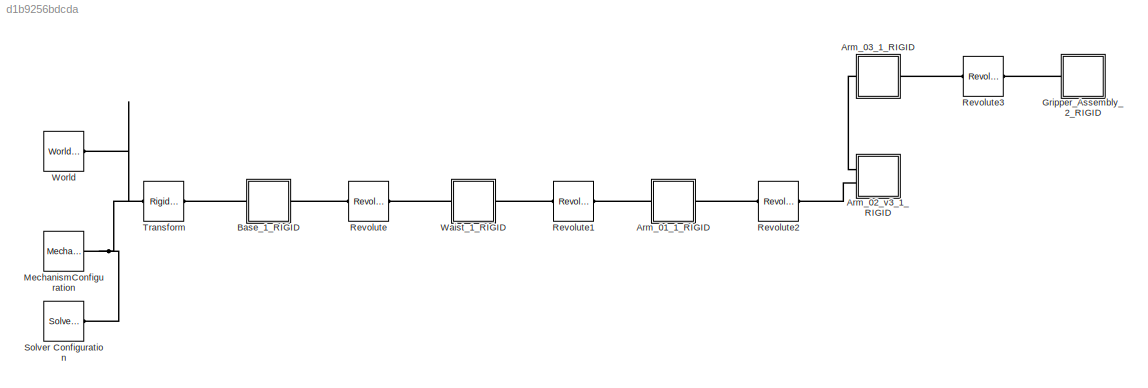
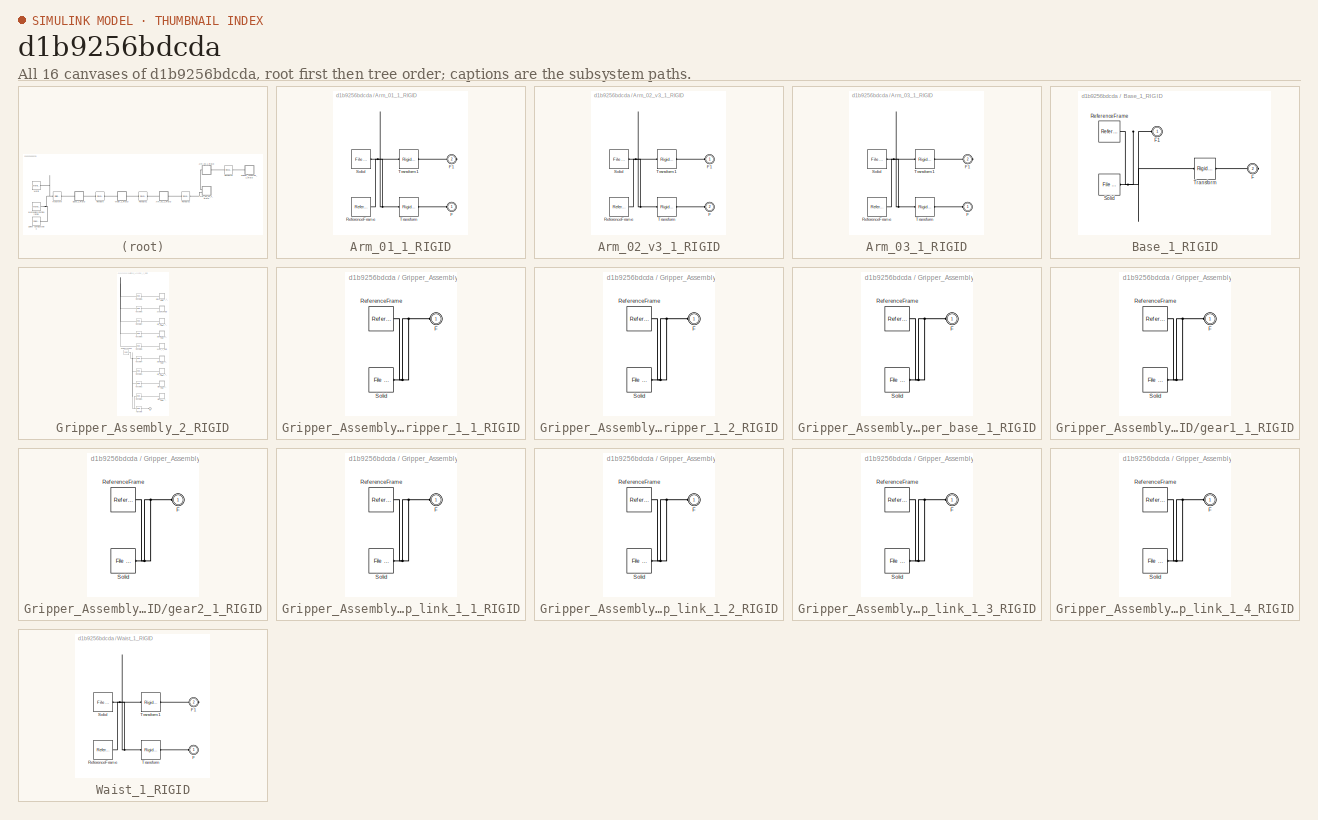
[diagram: thumbnail index - all 16 canvases of the model, root first then tree order]
MODEL slx_d1b9256bdcda
KIND model
CONFIG AbsTol = auto
CONFIG EnableMultiTasking = off
CONFIG FixedStep = auto
CONFIG MaxStep = auto
CONFIG MinStep = auto
CONFIG RelTol = 1e-3
CONFIG SampleTimeConstraint = Unconstrained
CONFIG SolverName = VariableStepAuto
CONFIG StartTime = 0.0
CONFIG StopTime = 10.0
WORKSPACE source: external: MATLAB File  (data not in archive)
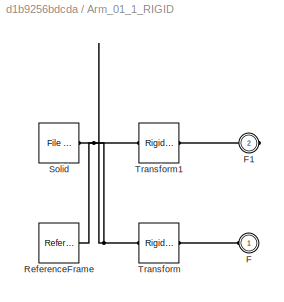
BLOCK [SubSystem] Arm_01_1_RIGID
  Ports = [0, 0, 0, 0, 0, 1, 1]
  RequestExecContextInheritance = off
BLOCK [PMIOPort] Arm_01_1_RIGID/F
  Side = Left
BLOCK [PMIOPort] Arm_01_1_RIGID/F1
  Port = 2
  Side = Right
BLOCK [Reference] Arm_01_1_RIGID/ReferenceFrame  REF=sm_lib/Frames and
Transforms/Reference
Frame
  Ports = [0, 0, 0, 0, 0, 0, 1]
  SourceBlock = sm_lib/Frames and\nTransforms/Reference\nFrame
  SourceProductBaseCode = MS
  SourceType = Reference\nFrame
BLOCK [Reference] Arm_01_1_RIGID/Solid  REF=sm_lib/Body Elements/File Solid
  Ports = [0, 0, 0, 0, 0, 0, 1]
  SourceBlock = sm_lib/Body Elements/File Solid
  SourceProductBaseCode = MS
  SourceType = File Solid
BLOCK [Reference] Arm_01_1_RIGID/Transform  REF=sm_lib/Frames and
Transforms/Rigid
Transform
  Ports = [0, 0, 0, 0, 0, 1, 1]
  SourceBlock = sm_lib/Frames and\nTransforms/Rigid\nTransform
  SourceProductBaseCode = MS
  SourceType = Rigid\nTransform
BLOCK [Reference] Arm_01_1_RIGID/Transform1  REF=sm_lib/Frames and
Transforms/Rigid
Transform
  Ports = [0, 0, 0, 0, 0, 1, 1]
  SourceBlock = sm_lib/Frames and\nTransforms/Rigid\nTransform
  SourceProductBaseCode = MS
  SourceType = Rigid\nTransform
BLOCK [SubSystem] Arm_02_v3_1_RIGID
  Ports = [0, 0, 0, 0, 0, 2]
  RequestExecContextInheritance = off
BLOCK [PMIOPort] Arm_02_v3_1_RIGID/F
  Port = 2
  Side = Left
BLOCK [PMIOPort] Arm_02_v3_1_RIGID/F1
  Side = Left
BLOCK [Reference] Arm_02_v3_1_RIGID/ReferenceFrame  REF=sm_lib/Frames and
Transforms/Reference
Frame
  Ports = [0, 0, 0, 0, 0, 0, 1]
  SourceBlock = sm_lib/Frames and\nTransforms/Reference\nFrame
  SourceProductBaseCode = MS
  SourceType = Reference\nFrame
BLOCK [Reference] Arm_02_v3_1_RIGID/Solid  REF=sm_lib/Body Elements/File Solid
  Ports = [0, 0, 0, 0, 0, 0, 1]
  SourceBlock = sm_lib/Body Elements/File Solid
  SourceProductBaseCode = MS
  SourceType = File Solid
BLOCK [Reference] Arm_02_v3_1_RIGID/Transform  REF=sm_lib/Frames and
Transforms/Rigid
Transform
  Ports = [0, 0, 0, 0, 0, 1, 1]
  SourceBlock = sm_lib/Frames and\nTransforms/Rigid\nTransform
  SourceProductBaseCode = MS
  SourceType = Rigid\nTransform
BLOCK [Reference] Arm_02_v3_1_RIGID/Transform1  REF=sm_lib/Frames and
Transforms/Rigid
Transform
  Ports = [0, 0, 0, 0, 0, 1, 1]
  SourceBlock = sm_lib/Frames and\nTransforms/Rigid\nTransform
  SourceProductBaseCode = MS
  SourceType = Rigid\nTransform
BLOCK [SubSystem] Arm_03_1_RIGID
  Ports = [0, 0, 0, 0, 0, 1, 1]
  RequestExecContextInheritance = off
BLOCK [PMIOPort] Arm_03_1_RIGID/F
  Side = Left
BLOCK [PMIOPort] Arm_03_1_RIGID/F1
  Port = 2
  Side = Right
BLOCK [Reference] Arm_03_1_RIGID/ReferenceFrame  REF=sm_lib/Frames and
Transforms/Reference
Frame
  Ports = [0, 0, 0, 0, 0, 0, 1]
  SourceBlock = sm_lib/Frames and\nTransforms/Reference\nFrame
  SourceProductBaseCode = MS
  SourceType = Reference\nFrame
BLOCK [Reference] Arm_03_1_RIGID/Solid  REF=sm_lib/Body Elements/File Solid
  Ports = [0, 0, 0, 0, 0, 0, 1]
  SourceBlock = sm_lib/Body Elements/File Solid
  SourceProductBaseCode = MS
  SourceType = File Solid
BLOCK [Reference] Arm_03_1_RIGID/Transform  REF=sm_lib/Frames and
Transforms/Rigid
Transform
  Ports = [0, 0, 0, 0, 0, 1, 1]
  SourceBlock = sm_lib/Frames and\nTransforms/Rigid\nTransform
  SourceProductBaseCode = MS
  SourceType = Rigid\nTransform
BLOCK [Reference] Arm_03_1_RIGID/Transform1  REF=sm_lib/Frames and
Transforms/Rigid
Transform
  Ports = [0, 0, 0, 0, 0, 1, 1]
  SourceBlock = sm_lib/Frames and\nTransforms/Rigid\nTransform
  SourceProductBaseCode = MS
  SourceType = Rigid\nTransform
BLOCK [SubSystem] Base_1_RIGID
  Ports = [0, 0, 0, 0, 0, 1, 1]
  RequestExecContextInheritance = off
BLOCK [PMIOPort] Base_1_RIGID/F
  Port = 2
  Side = Right
BLOCK [PMIOPort] Base_1_RIGID/F1
  Side = Left
BLOCK [Reference] Base_1_RIGID/ReferenceFrame  REF=sm_lib/Frames and
Transforms/Reference
Frame
  Ports = [0, 0, 0, 0, 0, 0, 1]
  SourceBlock = sm_lib/Frames and\nTransforms/Reference\nFrame
  SourceProductBaseCode = MS
  SourceType = Reference\nFrame
BLOCK [Reference] Base_1_RIGID/Solid  REF=sm_lib/Body Elements/File Solid
  Ports = [0, 0, 0, 0, 0, 0, 1]
  SourceBlock = sm_lib/Body Elements/File Solid
  SourceProductBaseCode = MS
  SourceType = File Solid
BLOCK [Reference] Base_1_RIGID/Transform  REF=sm_lib/Frames and
Transforms/Rigid
Transform
  Ports = [0, 0, 0, 0, 0, 1, 1]
  SourceBlock = sm_lib/Frames and\nTransforms/Rigid\nTransform
  SourceProductBaseCode = MS
  SourceType = Rigid\nTransform
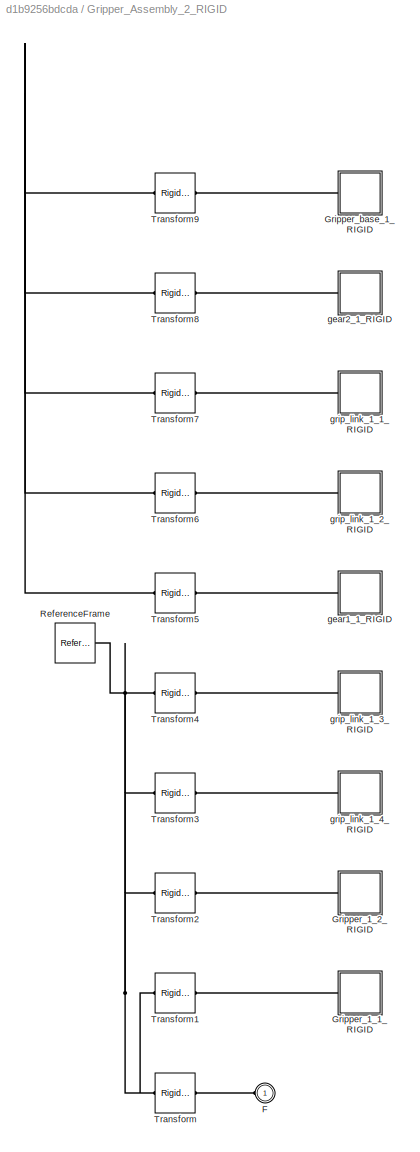
BLOCK [SubSystem] Gripper_Assembly_2_RIGID
  Ports = [0, 0, 0, 0, 0, 1]
  RequestExecContextInheritance = off
BLOCK [PMIOPort] Gripper_Assembly_2_RIGID/F
  Side = Left
BLOCK [SubSystem] Gripper_Assembly_2_RIGID/Gripper_1_1_RIGID
  Ports = [0, 0, 0, 0, 0, 1]
  RequestExecContextInheritance = off
BLOCK [PMIOPort] Gripper_Assembly_2_RIGID/Gripper_1_1_RIGID/F
  Side = Left
BLOCK [Reference] Gripper_Assembly_2_RIGID/Gripper_1_1_RIGID/ReferenceFrame  REF=sm_lib/Frames and
Transforms/Reference
Frame
  Ports = [0, 0, 0, 0, 0, 0, 1]
  SourceBlock = sm_lib/Frames and\nTransforms/Reference\nFrame
  SourceProductBaseCode = MS
  SourceType = Reference\nFrame
BLOCK [Reference] Gripper_Assembly_2_RIGID/Gripper_1_1_RIGID/Solid  REF=sm_lib/Body Elements/File Solid
  Ports = [0, 0, 0, 0, 0, 0, 1]
  SourceBlock = sm_lib/Body Elements/File Solid
  SourceProductBaseCode = MS
  SourceType = File Solid
BLOCK [SubSystem] Gripper_Assembly_2_RIGID/Gripper_1_2_RIGID
  Ports = [0, 0, 0, 0, 0, 1]
  RequestExecContextInheritance = off
BLOCK [PMIOPort] Gripper_Assembly_2_RIGID/Gripper_1_2_RIGID/F
  Side = Left
BLOCK [Reference] Gripper_Assembly_2_RIGID/Gripper_1_2_RIGID/ReferenceFrame  REF=sm_lib/Frames and
Transforms/Reference
Frame
  Ports = [0, 0, 0, 0, 0, 0, 1]
  SourceBlock = sm_lib/Frames and\nTransforms/Reference\nFrame
  SourceProductBaseCode = MS
  SourceType = Reference\nFrame
BLOCK [Reference] Gripper_Assembly_2_RIGID/Gripper_1_2_RIGID/Solid  REF=sm_lib/Body Elements/File Solid
  Ports = [0, 0, 0, 0, 0, 0, 1]
  SourceBlock = sm_lib/Body Elements/File Solid
  SourceProductBaseCode = MS
  SourceType = File Solid
BLOCK [SubSystem] Gripper_Assembly_2_RIGID/Gripper_base_1_RIGID
  Ports = [0, 0, 0, 0, 0, 1]
  RequestExecContextInheritance = off
BLOCK [PMIOPort] Gripper_Assembly_2_RIGID/Gripper_base_1_RIGID/F
  Side = Left
BLOCK [Reference] Gripper_Assembly_2_RIGID/Gripper_base_1_RIGID/ReferenceFrame  REF=sm_lib/Frames and
Transforms/Reference
Frame
  Ports = [0, 0, 0, 0, 0, 0, 1]
  SourceBlock = sm_lib/Frames and\nTransforms/Reference\nFrame
  SourceProductBaseCode = MS
  SourceType = Reference\nFrame
BLOCK [Reference] Gripper_Assembly_2_RIGID/Gripper_base_1_RIGID/Solid  REF=sm_lib/Body Elements/File Solid
  Ports = [0, 0, 0, 0, 0, 0, 1]
  SourceBlock = sm_lib/Body Elements/File Solid
  SourceProductBaseCode = MS
  SourceType = File Solid
BLOCK [Reference] Gripper_Assembly_2_RIGID/ReferenceFrame  REF=sm_lib/Frames and
Transforms/Reference
Frame
  Ports = [0, 0, 0, 0, 0, 0, 1]
  SourceBlock = sm_lib/Frames and\nTransforms/Reference\nFrame
  SourceProductBaseCode = MS
  SourceType = Reference\nFrame
BLOCK [Reference] Gripper_Assembly_2_RIGID/Transform  REF=sm_lib/Frames and
Transforms/Rigid
Transform
  Ports = [0, 0, 0, 0, 0, 1, 1]
  SourceBlock = sm_lib/Frames and\nTransforms/Rigid\nTransform
  SourceProductBaseCode = MS
  SourceType = Rigid\nTransform
BLOCK [Reference] Gripper_Assembly_2_RIGID/Transform1  REF=sm_lib/Frames and
Transforms/Rigid
Transform
  Ports = [0, 0, 0, 0, 0, 1, 1]
  SourceBlock = sm_lib/Frames and\nTransforms/Rigid\nTransform
  SourceProductBaseCode = MS
  SourceType = Rigid\nTransform
BLOCK [Reference] Gripper_Assembly_2_RIGID/Transform2  REF=sm_lib/Frames and
Transforms/Rigid
Transform
  Ports = [0, 0, 0, 0, 0, 1, 1]
  SourceBlock = sm_lib/Frames and\nTransforms/Rigid\nTransform
  SourceProductBaseCode = MS
  SourceType = Rigid\nTransform
BLOCK [Reference] Gripper_Assembly_2_RIGID/Transform3  REF=sm_lib/Frames and
Transforms/Rigid
Transform
  Ports = [0, 0, 0, 0, 0, 1, 1]
  SourceBlock = sm_lib/Frames and\nTransforms/Rigid\nTransform
  SourceProductBaseCode = MS
  SourceType = Rigid\nTransform
BLOCK [Reference] Gripper_Assembly_2_RIGID/Transform4  REF=sm_lib/Frames and
Transforms/Rigid
Transform
  Ports = [0, 0, 0, 0, 0, 1, 1]
  SourceBlock = sm_lib/Frames and\nTransforms/Rigid\nTransform
  SourceProductBaseCode = MS
  SourceType = Rigid\nTransform
BLOCK [Reference] Gripper_Assembly_2_RIGID/Transform5  REF=sm_lib/Frames and
Transforms/Rigid
Transform
  Ports = [0, 0, 0, 0, 0, 1, 1]
  SourceBlock = sm_lib/Frames and\nTransforms/Rigid\nTransform
  SourceProductBaseCode = MS
  SourceType = Rigid\nTransform
BLOCK [Reference] Gripper_Assembly_2_RIGID/Transform6  REF=sm_lib/Frames and
Transforms/Rigid
Transform
  Ports = [0, 0, 0, 0, 0, 1, 1]
  SourceBlock = sm_lib/Frames and\nTransforms/Rigid\nTransform
  SourceProductBaseCode = MS
  SourceType = Rigid\nTransform
BLOCK [Reference] Gripper_Assembly_2_RIGID/Transform7  REF=sm_lib/Frames and
Transforms/Rigid
Transform
  Ports = [0, 0, 0, 0, 0, 1, 1]
  SourceBlock = sm_lib/Frames and\nTransforms/Rigid\nTransform
  SourceProductBaseCode = MS
  SourceType = Rigid\nTransform
BLOCK [Reference] Gripper_Assembly_2_RIGID/Transform8  REF=sm_lib/Frames and
Transforms/Rigid
Transform
  Ports = [0, 0, 0, 0, 0, 1, 1]
  SourceBlock = sm_lib/Frames and\nTransforms/Rigid\nTransform
  SourceProductBaseCode = MS
  SourceType = Rigid\nTransform
BLOCK [Reference] Gripper_Assembly_2_RIGID/Transform9  REF=sm_lib/Frames and
Transforms/Rigid
Transform
  Ports = [0, 0, 0, 0, 0, 1, 1]
  SourceBlock = sm_lib/Frames and\nTransforms/Rigid\nTransform
  SourceProductBaseCode = MS
  SourceType = Rigid\nTransform
BLOCK [SubSystem] Gripper_Assembly_2_RIGID/gear1_1_RIGID
  Ports = [0, 0, 0, 0, 0, 1]
  RequestExecContextInheritance = off
BLOCK [PMIOPort] Gripper_Assembly_2_RIGID/gear1_1_RIGID/F
  Side = Left
BLOCK [Reference] Gripper_Assembly_2_RIGID/gear1_1_RIGID/ReferenceFrame  REF=sm_lib/Frames and
Transforms/Reference
Frame
  Ports = [0, 0, 0, 0, 0, 0, 1]
  SourceBlock = sm_lib/Frames and\nTransforms/Reference\nFrame
  SourceProductBaseCode = MS
  SourceType = Reference\nFrame
BLOCK [Reference] Gripper_Assembly_2_RIGID/gear1_1_RIGID/Solid  REF=sm_lib/Body Elements/File Solid
  Ports = [0, 0, 0, 0, 0, 0, 1]
  SourceBlock = sm_lib/Body Elements/File Solid
  SourceProductBaseCode = MS
  SourceType = File Solid
BLOCK [SubSystem] Gripper_Assembly_2_RIGID/gear2_1_RIGID
  Ports = [0, 0, 0, 0, 0, 1]
  RequestExecContextInheritance = off
BLOCK [PMIOPort] Gripper_Assembly_2_RIGID/gear2_1_RIGID/F
  Side = Left
BLOCK [Reference] Gripper_Assembly_2_RIGID/gear2_1_RIGID/ReferenceFrame  REF=sm_lib/Frames and
Transforms/Reference
Frame
  Ports = [0, 0, 0, 0, 0, 0, 1]
  SourceBlock = sm_lib/Frames and\nTransforms/Reference\nFrame
  SourceProductBaseCode = MS
  SourceType = Reference\nFrame
BLOCK [Reference] Gripper_Assembly_2_RIGID/gear2_1_RIGID/Solid  REF=sm_lib/Body Elements/File Solid
  Ports = [0, 0, 0, 0, 0, 0, 1]
  SourceBlock = sm_lib/Body Elements/File Solid
  SourceProductBaseCode = MS
  SourceType = File Solid
BLOCK [SubSystem] Gripper_Assembly_2_RIGID/grip_link_1_1_RIGID
  Ports = [0, 0, 0, 0, 0, 1]
  RequestExecContextInheritance = off
BLOCK [PMIOPort] Gripper_Assembly_2_RIGID/grip_link_1_1_RIGID/F
  Side = Left
BLOCK [Reference] Gripper_Assembly_2_RIGID/grip_link_1_1_RIGID/ReferenceFrame  REF=sm_lib/Frames and
Transforms/Reference
Frame
  Ports = [0, 0, 0, 0, 0, 0, 1]
  SourceBlock = sm_lib/Frames and\nTransforms/Reference\nFrame
  SourceProductBaseCode = MS
  SourceType = Reference\nFrame
BLOCK [Reference] Gripper_Assembly_2_RIGID/grip_link_1_1_RIGID/Solid  REF=sm_lib/Body Elements/File Solid
  Ports = [0, 0, 0, 0, 0, 0, 1]
  SourceBlock = sm_lib/Body Elements/File Solid
  SourceProductBaseCode = MS
  SourceType = File Solid
BLOCK [SubSystem] Gripper_Assembly_2_RIGID/grip_link_1_2_RIGID
  Ports = [0, 0, 0, 0, 0, 1]
  RequestExecContextInheritance = off
BLOCK [PMIOPort] Gripper_Assembly_2_RIGID/grip_link_1_2_RIGID/F
  Side = Left
BLOCK [Reference] Gripper_Assembly_2_RIGID/grip_link_1_2_RIGID/ReferenceFrame  REF=sm_lib/Frames and
Transforms/Reference
Frame
  Ports = [0, 0, 0, 0, 0, 0, 1]
  SourceBlock = sm_lib/Frames and\nTransforms/Reference\nFrame
  SourceProductBaseCode = MS
  SourceType = Reference\nFrame
BLOCK [Reference] Gripper_Assembly_2_RIGID/grip_link_1_2_RIGID/Solid  REF=sm_lib/Body Elements/File Solid
  Ports = [0, 0, 0, 0, 0, 0, 1]
  SourceBlock = sm_lib/Body Elements/File Solid
  SourceProductBaseCode = MS
  SourceType = File Solid
BLOCK [SubSystem] Gripper_Assembly_2_RIGID/grip_link_1_3_RIGID
  Ports = [0, 0, 0, 0, 0, 1]
  RequestExecContextInheritance = off
BLOCK [PMIOPort] Gripper_Assembly_2_RIGID/grip_link_1_3_RIGID/F
  Side = Left
BLOCK [Reference] Gripper_Assembly_2_RIGID/grip_link_1_3_RIGID/ReferenceFrame  REF=sm_lib/Frames and
Transforms/Reference
Frame
  Ports = [0, 0, 0, 0, 0, 0, 1]
  SourceBlock = sm_lib/Frames and\nTransforms/Reference\nFrame
  SourceProductBaseCode = MS
  SourceType = Reference\nFrame
BLOCK [Reference] Gripper_Assembly_2_RIGID/grip_link_1_3_RIGID/Solid  REF=sm_lib/Body Elements/File Solid
  Ports = [0, 0, 0, 0, 0, 0, 1]
  SourceBlock = sm_lib/Body Elements/File Solid
  SourceProductBaseCode = MS
  SourceType = File Solid
BLOCK [SubSystem] Gripper_Assembly_2_RIGID/grip_link_1_4_RIGID
  Ports = [0, 0, 0, 0, 0, 1]
  RequestExecContextInheritance = off
BLOCK [PMIOPort] Gripper_Assembly_2_RIGID/grip_link_1_4_RIGID/F
  Side = Left
BLOCK [Reference] Gripper_Assembly_2_RIGID/grip_link_1_4_RIGID/ReferenceFrame  REF=sm_lib/Frames and
Transforms/Reference
Frame
  Ports = [0, 0, 0, 0, 0, 0, 1]
  SourceBlock = sm_lib/Frames and\nTransforms/Reference\nFrame
  SourceProductBaseCode = MS
  SourceType = Reference\nFrame
BLOCK [Reference] Gripper_Assembly_2_RIGID/grip_link_1_4_RIGID/Solid  REF=sm_lib/Body Elements/File Solid
  Ports = [0, 0, 0, 0, 0, 0, 1]
  SourceBlock = sm_lib/Body Elements/File Solid
  SourceProductBaseCode = MS
  SourceType = File Solid
BLOCK [Reference] MechanismConfiguration  REF=sm_lib/Utilities/Mechanism
Configuration
  Ports = [0, 0, 0, 0, 0, 0, 1]
  SourceBlock = sm_lib/Utilities/Mechanism\nConfiguration
  SourceProductBaseCode = MS
  SourceType = Mechanism\nConfiguration
BLOCK [Reference] Revolute  REF=sm_lib/Joints/Revolute Joint
  Ports = [0, 0, 0, 0, 0, 1, 1]
  SourceBlock = sm_lib/Joints/Revolute Joint
  SourceProductBaseCode = MS
  SourceType = Revolute Joint
BLOCK [Reference] Revolute1  REF=sm_lib/Joints/Revolute Joint
  Ports = [0, 0, 0, 0, 0, 1, 1]
  SourceBlock = sm_lib/Joints/Revolute Joint
  SourceProductBaseCode = MS
  SourceType = Revolute Joint
BLOCK [Reference] Revolute2  REF=sm_lib/Joints/Revolute Joint
  Ports = [0, 0, 0, 0, 0, 1, 1]
  SourceBlock = sm_lib/Joints/Revolute Joint
  SourceProductBaseCode = MS
  SourceType = Revolute Joint
BLOCK [Reference] Revolute3  REF=sm_lib/Joints/Revolute Joint
  Ports = [0, 0, 0, 0, 0, 1, 1]
  SourceBlock = sm_lib/Joints/Revolute Joint
  SourceProductBaseCode = MS
  SourceType = Revolute Joint
BLOCK [Reference] Solver Configuration  REF=nesl_utility/Solver
Configuration
  Ports = [0, 0, 0, 0, 0, 0, 1]
  SourceBlock = nesl_utility/Solver\nConfiguration
  SourceProductBaseCode = PW,SS
  SourceType = Solver\nConfiguration
BLOCK [Reference] Transform  REF=sm_lib/Frames and
Transforms/Rigid
Transform
  Ports = [0, 0, 0, 0, 0, 1, 1]
  SourceBlock = sm_lib/Frames and\nTransforms/Rigid\nTransform
  SourceProductBaseCode = MS
  SourceType = Rigid\nTransform
BLOCK [SubSystem] Waist_1_RIGID
  Ports = [0, 0, 0, 0, 0, 1, 1]
  RequestExecContextInheritance = off
BLOCK [PMIOPort] Waist_1_RIGID/F
  Side = Left
BLOCK [PMIOPort] Waist_1_RIGID/F1
  Port = 2
  Side = Right
BLOCK [Reference] Waist_1_RIGID/ReferenceFrame  REF=sm_lib/Frames and
Transforms/Reference
Frame
  Ports = [0, 0, 0, 0, 0, 0, 1]
  SourceBlock = sm_lib/Frames and\nTransforms/Reference\nFrame
  SourceProductBaseCode = MS
  SourceType = Reference\nFrame
BLOCK [Reference] Waist_1_RIGID/Solid  REF=sm_lib/Body Elements/File Solid
  Ports = [0, 0, 0, 0, 0, 0, 1]
  SourceBlock = sm_lib/Body Elements/File Solid
  SourceProductBaseCode = MS
  SourceType = File Solid
BLOCK [Reference] Waist_1_RIGID/Transform  REF=sm_lib/Frames and
Transforms/Rigid
Transform
  Ports = [0, 0, 0, 0, 0, 1, 1]
  SourceBlock = sm_lib/Frames and\nTransforms/Rigid\nTransform
  SourceProductBaseCode = MS
  SourceType = Rigid\nTransform
BLOCK [Reference] Waist_1_RIGID/Transform1  REF=sm_lib/Frames and
Transforms/Rigid
Transform
  Ports = [0, 0, 0, 0, 0, 1, 1]
  SourceBlock = sm_lib/Frames and\nTransforms/Rigid\nTransform
  SourceProductBaseCode = MS
  SourceType = Rigid\nTransform
BLOCK [Reference] World  REF=sm_lib/Frames and
Transforms/World Frame
  Ports = [0, 0, 0, 0, 0, 0, 1]
  SourceBlock = sm_lib/Frames and\nTransforms/World Frame
  SourceProductBaseCode = MS
  SourceType = World Frame
PLINE Arm_01_1_RIGID/F1:RConn1 -- Arm_01_1_RIGID/Transform1:RConn1
PLINE Arm_01_1_RIGID/F:RConn1 -- Arm_01_1_RIGID/Transform:RConn1
PNET net1: Arm_01_1_RIGID/ReferenceFrame:RConn1 -- Arm_01_1_RIGID/Solid:RConn1 -- Arm_01_1_RIGID/Transform1:LConn1 -- Arm_01_1_RIGID/Transform:LConn1
PLINE Arm_01_1_RIGID:LConn1 -- Revolute1:RConn1
PLINE Arm_01_1_RIGID:RConn1 -- Revolute2:LConn1
PLINE Arm_02_v3_1_RIGID/F1:RConn1 -- Arm_02_v3_1_RIGID/Transform1:RConn1
PLINE Arm_02_v3_1_RIGID/F:RConn1 -- Arm_02_v3_1_RIGID/Transform:RConn1
PNET net2: Arm_02_v3_1_RIGID/ReferenceFrame:RConn1 -- Arm_02_v3_1_RIGID/Solid:RConn1 -- Arm_02_v3_1_RIGID/Transform1:LConn1 -- Arm_02_v3_1_RIGID/Transform:LConn1
PLINE Arm_02_v3_1_RIGID:LConn1 -- Arm_03_1_RIGID:LConn1
PLINE Arm_02_v3_1_RIGID:LConn2 -- Revolute2:RConn1
PLINE Arm_03_1_RIGID/F1:RConn1 -- Arm_03_1_RIGID/Transform1:RConn1
PLINE Arm_03_1_RIGID/F:RConn1 -- Arm_03_1_RIGID/Transform:RConn1
PNET net3: Arm_03_1_RIGID/ReferenceFrame:RConn1 -- Arm_03_1_RIGID/Solid:RConn1 -- Arm_03_1_RIGID/Transform1:LConn1 -- Arm_03_1_RIGID/Transform:LConn1
PLINE Arm_03_1_RIGID:RConn1 -- Revolute3:LConn1
PNET net4: Base_1_RIGID/F1:RConn1 -- Base_1_RIGID/ReferenceFrame:RConn1 -- Base_1_RIGID/Solid:RConn1 -- Base_1_RIGID/Transform:LConn1
PLINE Base_1_RIGID/F:RConn1 -- Base_1_RIGID/Transform:RConn1
PLINE Base_1_RIGID:LConn1 -- Transform:RConn1
PLINE Base_1_RIGID:RConn1 -- Revolute:LConn1
PLINE Gripper_Assembly_2_RIGID/F:RConn1 -- Gripper_Assembly_2_RIGID/Transform:RConn1
PNET net5: Gripper_Assembly_2_RIGID/Gripper_1_1_RIGID/F:RConn1 -- Gripper_Assembly_2_RIGID/Gripper_1_1_RIGID/ReferenceFrame:RConn1 -- Gripper_Assembly_2_RIGID/Gripper_1_1_RIGID/Solid:RConn1
PLINE Gripper_Assembly_2_RIGID/Gripper_1_1_RIGID:LConn1 -- Gripper_Assembly_2_RIGID/Transform1:RConn1
PNET net6: Gripper_Assembly_2_RIGID/Gripper_1_2_RIGID/F:RConn1 -- Gripper_Assembly_2_RIGID/Gripper_1_2_RIGID/ReferenceFrame:RConn1 -- Gripper_Assembly_2_RIGID/Gripper_1_2_RIGID/Solid:RConn1
PLINE Gripper_Assembly_2_RIGID/Gripper_1_2_RIGID:LConn1 -- Gripper_Assembly_2_RIGID/Transform2:RConn1
PNET net7: Gripper_Assembly_2_RIGID/Gripper_base_1_RIGID/F:RConn1 -- Gripper_Assembly_2_RIGID/Gripper_base_1_RIGID/ReferenceFrame:RConn1 -- Gripper_Assembly_2_RIGID/Gripper_base_1_RIGID/Solid:RConn1
PLINE Gripper_Assembly_2_RIGID/Gripper_base_1_RIGID:LConn1 -- Gripper_Assembly_2_RIGID/Transform9:RConn1
PNET net8: Gripper_Assembly_2_RIGID/ReferenceFrame:RConn1 -- Gripper_Assembly_2_RIGID/Transform1:LConn1 -- Gripper_Assembly_2_RIGID/Transform2:LConn1 -- Gripper_Assembly_2_RIGID/Transform3:LConn1 -- Gripper_Assembly_2_RIGID/Transform4:LConn1 -- Gripper_Assembly_2_RIGID/Transform5:LConn1 -- Gripper_Assembly_2_RIGID/Transform6:LConn1 -- Gripper_Assembly_2_RIGID/Transform7:LConn1 -- Gripper_Assembly_2_RIGID/Transform8:LConn1 -- Gripper_Assembly_2_RIGID/Transform9:LConn1 -- Gripper_Assembly_2_RIGID/Transform:LConn1
PLINE Gripper_Assembly_2_RIGID/Transform3:RConn1 -- Gripper_Assembly_2_RIGID/grip_link_1_4_RIGID:LConn1
PLINE Gripper_Assembly_2_RIGID/Transform4:RConn1 -- Gripper_Assembly_2_RIGID/grip_link_1_3_RIGID:LConn1
PLINE Gripper_Assembly_2_RIGID/Transform5:RConn1 -- Gripper_Assembly_2_RIGID/gear1_1_RIGID:LConn1
PLINE Gripper_Assembly_2_RIGID/Transform6:RConn1 -- Gripper_Assembly_2_RIGID/grip_link_1_2_RIGID:LConn1
PLINE Gripper_Assembly_2_RIGID/Transform7:RConn1 -- Gripper_Assembly_2_RIGID/grip_link_1_1_RIGID:LConn1
PLINE Gripper_Assembly_2_RIGID/Transform8:RConn1 -- Gripper_Assembly_2_RIGID/gear2_1_RIGID:LConn1
PNET net9: Gripper_Assembly_2_RIGID/gear1_1_RIGID/F:RConn1 -- Gripper_Assembly_2_RIGID/gear1_1_RIGID/ReferenceFrame:RConn1 -- Gripper_Assembly_2_RIGID/gear1_1_RIGID/Solid:RConn1
PNET net10: Gripper_Assembly_2_RIGID/gear2_1_RIGID/F:RConn1 -- Gripper_Assembly_2_RIGID/gear2_1_RIGID/ReferenceFrame:RConn1 -- Gripper_Assembly_2_RIGID/gear2_1_RIGID/Solid:RConn1
PNET net11: Gripper_Assembly_2_RIGID/grip_link_1_1_RIGID/F:RConn1 -- Gripper_Assembly_2_RIGID/grip_link_1_1_RIGID/ReferenceFrame:RConn1 -- Gripper_Assembly_2_RIGID/grip_link_1_1_RIGID/Solid:RConn1
PNET net12: Gripper_Assembly_2_RIGID/grip_link_1_2_RIGID/F:RConn1 -- Gripper_Assembly_2_RIGID/grip_link_1_2_RIGID/ReferenceFrame:RConn1 -- Gripper_Assembly_2_RIGID/grip_link_1_2_RIGID/Solid:RConn1
PNET net13: Gripper_Assembly_2_RIGID/grip_link_1_3_RIGID/F:RConn1 -- Gripper_Assembly_2_RIGID/grip_link_1_3_RIGID/ReferenceFrame:RConn1 -- Gripper_Assembly_2_RIGID/grip_link_1_3_RIGID/Solid:RConn1
PNET net14: Gripper_Assembly_2_RIGID/grip_link_1_4_RIGID/F:RConn1 -- Gripper_Assembly_2_RIGID/grip_link_1_4_RIGID/ReferenceFrame:RConn1 -- Gripper_Assembly_2_RIGID/grip_link_1_4_RIGID/Solid:RConn1
PLINE Gripper_Assembly_2_RIGID:LConn1 -- Revolute3:RConn1
PNET net15: MechanismConfiguration:RConn1 -- Solver Configuration:RConn1 -- Transform:LConn1 -- World:RConn1
PLINE Revolute1:LConn1 -- Waist_1_RIGID:RConn1
PLINE Revolute:RConn1 -- Waist_1_RIGID:LConn1
PLINE Waist_1_RIGID/F1:RConn1 -- Waist_1_RIGID/Transform1:RConn1
PLINE Waist_1_RIGID/F:RConn1 -- Waist_1_RIGID/Transform:RConn1
PNET net16: Waist_1_RIGID/ReferenceFrame:RConn1 -- Waist_1_RIGID/Solid:RConn1 -- Waist_1_RIGID/Transform1:LConn1 -- Waist_1_RIGID/Transform:LConn1
note: PNET lines group multi-terminal physical nets as a canonical sorted terminal list (undirected conserving connections); 2-terminal nets keep the pairwise PLINE form
